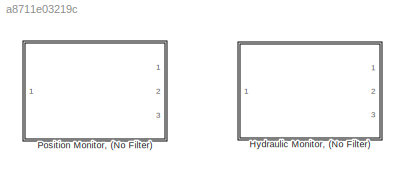
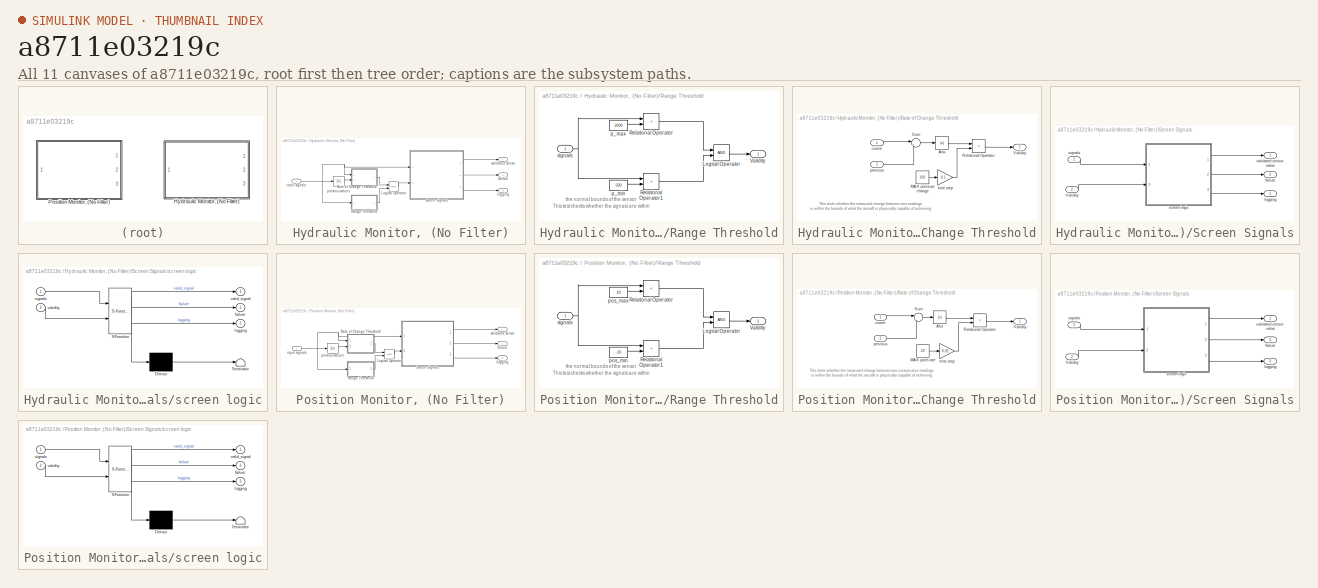
[diagram: thumbnail index - all 11 canvases of the model, root first then tree order]
MODEL slx_a8711e03219c
KIND library
CONFIG AbsTol = auto
CONFIG EnableMultiTasking = off
CONFIG FixedStep = auto
CONFIG MaxStep = auto
CONFIG MinStep = auto
CONFIG RelTol = 1e-3
CONFIG SampleTimeConstraint = Unconstrained
CONFIG Solver = ode45
CONFIG SolverName = ode45
CONFIG StartTime = 0.0
CONFIG StopTime = 10.0
BLOCK [SubSystem] Hydraulic Monitor, (No Filter)
  AncestorBlock = screen_library/Hydraulic Monitor
  Ports = [1, 3]
  RequestExecContextInheritance = off
  Variant = off
BLOCK [Logic] Hydraulic Monitor, (No Filter)/Logical Operator
  AllPortsSameDT = off
  Ports = [2, 1]
BLOCK [SubSystem] Hydraulic Monitor, (No Filter)/Range Threshold
  Ports = [1, 1]
  RequestExecContextInheritance = off
  Variant = off
BLOCK [Logic] Hydraulic Monitor, (No Filter)/Range Threshold/Logical Operator
  AllPortsSameDT = off
  Ports = [2, 1]
BLOCK [RelationalOperator] Hydraulic Monitor, (No Filter)/Range Threshold/Relational Operator
  InputSameDT = off
  Operator = <
  Ports = [2, 1]
BLOCK [RelationalOperator] Hydraulic Monitor, (No Filter)/Range Threshold/Relational Operator1
  InputSameDT = off
  Operator = >
  Ports = [2, 1]
BLOCK [Outport] Hydraulic Monitor, (No Filter)/Range Threshold/Validity
  IconDisplay = Port number
BLOCK [Constant] Hydraulic Monitor, (No Filter)/Range Threshold/p_max
  Value = 2000
BLOCK [Constant] Hydraulic Monitor, (No Filter)/Range Threshold/p_min
  Value = 500
BLOCK [Inport] Hydraulic Monitor, (No Filter)/Range Threshold/signals
  IconDisplay = Port number
BLOCK [SubSystem] Hydraulic Monitor, (No Filter)/Rate of Change Threshold
  Ports = [2, 1]
  RequestExecContextInheritance = off
  Variant = off
BLOCK [Abs] Hydraulic Monitor, (No Filter)/Rate of Change Threshold/Abs
BLOCK [Constant] Hydraulic Monitor, (No Filter)/Rate of Change Threshold/MAX pressure change
  Value = 100
BLOCK [RelationalOperator] Hydraulic Monitor, (No Filter)/Rate of Change Threshold/Relational Operator
  InputSameDT = off
  Operator = <
  OutDataTypeStr = boolean
  Ports = [2, 1]
BLOCK [Sum] Hydraulic Monitor, (No Filter)/Rate of Change Threshold/Sum
  IconShape = round
  InputSameDT = off
  Inputs = |+-
  OutDataTypeStr = Inherit: Inherit via internal rule
  Ports = [2, 1]
BLOCK [Outport] Hydraulic Monitor, (No Filter)/Rate of Change Threshold/Validity
  IconDisplay = Port number
BLOCK [Inport] Hydraulic Monitor, (No Filter)/Rate of Change Threshold/curent
  IconDisplay = Port number
BLOCK [Inport] Hydraulic Monitor, (No Filter)/Rate of Change Threshold/previous
  IconDisplay = Port number
  Port = 2
BLOCK [Gain] Hydraulic Monitor, (No Filter)/Rate of Change Threshold/time step
  Gain = 0.1
BLOCK [SubSystem] Hydraulic Monitor, (No Filter)/Screen Signals
  Ports = [2, 3]
  RequestExecContextInheritance = off
  Variant = off
BLOCK [Inport] Hydraulic Monitor, (No Filter)/Screen Signals/Validity
  IconDisplay = Port number
  Port = 2
BLOCK [Outport] Hydraulic Monitor, (No Filter)/Screen Signals/failure
  IconDisplay = Port number
  Port = 2
BLOCK [Outport] Hydraulic Monitor, (No Filter)/Screen Signals/logging
  IconDisplay = Port number
  Port = 3
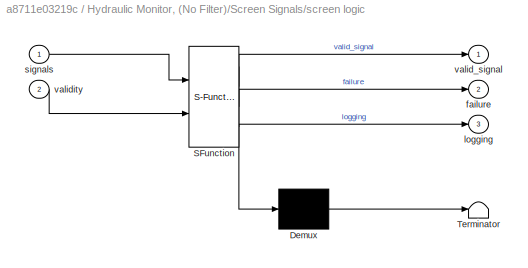
BLOCK [SubSystem] Hydraulic Monitor, (No Filter)/Screen Signals/screen logic
  AncestorBlock = new_screening/Montior/Screen Signals/screen logic
  ErrorFcn = Stateflow.Translate.translate
  PermitHierarchicalResolution = ExplicitOnly
  Ports = [2, 3]
  RequestExecContextInheritance = off
  SFBlockType = Chart
  TreatAsAtomicUnit = on
  Variant = off
BLOCK [Demux] Hydraulic Monitor, (No Filter)/Screen Signals/screen logic/ Demux 
  Outputs = 1
  Ports = [1, 1]
BLOCK [S-Function] Hydraulic Monitor, (No Filter)/Screen Signals/screen logic/ SFunction 
  EnableBusSupport = off
  FunctionName = sf_sfun
  PortCounts = [2 4]
  Ports = [2, 4]
  SFcnIsStateOwnerBlock = off
  SFunctionDeploymentMode = off
  Tag = Stateflow S-Function sf_aircraft_screen_library 2
BLOCK [Terminator] Hydraulic Monitor, (No Filter)/Screen Signals/screen logic/ Terminator 
BLOCK [Outport] Hydraulic Monitor, (No Filter)/Screen Signals/screen logic/ logging
  IconDisplay = Port number
  Port = 3
BLOCK [Outport] Hydraulic Monitor, (No Filter)/Screen Signals/screen logic/failure
  IconDisplay = Port number
  Port = 2
BLOCK [Inport] Hydraulic Monitor, (No Filter)/Screen Signals/screen logic/signals
  IconDisplay = Port number
BLOCK [Outport] Hydraulic Monitor, (No Filter)/Screen Signals/screen logic/valid_signal
  IconDisplay = Port number
BLOCK [Inport] Hydraulic Monitor, (No Filter)/Screen Signals/screen logic/validity
  IconDisplay = Port number
  Port = 2
BLOCK [Inport] Hydraulic Monitor, (No Filter)/Screen Signals/signals
  IconDisplay = Port number
BLOCK [Outport] Hydraulic Monitor, (No Filter)/Screen Signals/validated sensor value
  IconDisplay = Port number
BLOCK [Outport] Hydraulic Monitor, (No Filter)/failure
  IconDisplay = Port number
  Port = 2
BLOCK [Inport] Hydraulic Monitor, (No Filter)/input signals
  IconDisplay = Port number
  PortDimensions = 3
  SampleTime = 0.01
BLOCK [Outport] Hydraulic Monitor, (No Filter)/logging
  IconDisplay = Port number
  Port = 3
BLOCK [UnitDelay] Hydraulic Monitor, (No Filter)/previous values
  SampleTime = -1
BLOCK [Outport] Hydraulic Monitor, (No Filter)/validated sensor
  IconDisplay = Port number
BLOCK [SubSystem] Position Monitor, (No Filter)
  Ports = [1, 3]
  RequestExecContextInheritance = off
  Variant = off
BLOCK [Logic] Position Monitor, (No Filter)/Logical Operator
  AllPortsSameDT = off
  Ports = [2, 1]
BLOCK [SubSystem] Position Monitor, (No Filter)/Range Threshold
  Ports = [1, 1]
  RequestExecContextInheritance = off
  Variant = off
BLOCK [Logic] Position Monitor, (No Filter)/Range Threshold/Logical Operator
  AllPortsSameDT = off
  Ports = [2, 1]
BLOCK [RelationalOperator] Position Monitor, (No Filter)/Range Threshold/Relational Operator
  InputSameDT = off
  Operator = <
  Ports = [2, 1]
BLOCK [RelationalOperator] Position Monitor, (No Filter)/Range Threshold/Relational Operator1
  InputSameDT = off
  Operator = >
  Ports = [2, 1]
BLOCK [Outport] Position Monitor, (No Filter)/Range Threshold/Validity
  IconDisplay = Port number
BLOCK [Constant] Position Monitor, (No Filter)/Range Threshold/pos_max
  Value = 10
BLOCK [Constant] Position Monitor, (No Filter)/Range Threshold/pos_min
  Value = -10
BLOCK [Inport] Position Monitor, (No Filter)/Range Threshold/signals
  IconDisplay = Port number
BLOCK [SubSystem] Position Monitor, (No Filter)/Rate of Change Threshold
  Ports = [2, 1]
  RequestExecContextInheritance = off
  Variant = off
BLOCK [Abs] Position Monitor, (No Filter)/Rate of Change Threshold/Abs
BLOCK [Constant] Position Monitor, (No Filter)/Rate of Change Threshold/MAX pitch rate
  Value = 20
BLOCK [RelationalOperator] Position Monitor, (No Filter)/Rate of Change Threshold/Relational Operator
  InputSameDT = off
  Operator = <
  OutDataTypeStr = boolean
  Ports = [2, 1]
BLOCK [Sum] Position Monitor, (No Filter)/Rate of Change Threshold/Sum
  IconShape = round
  InputSameDT = off
  Inputs = |+-
  OutDataTypeStr = Inherit: Inherit via internal rule
  Ports = [2, 1]
BLOCK [Outport] Position Monitor, (No Filter)/Rate of Change Threshold/Validity
  IconDisplay = Port number
BLOCK [Inport] Position Monitor, (No Filter)/Rate of Change Threshold/curent
  IconDisplay = Port number
BLOCK [Inport] Position Monitor, (No Filter)/Rate of Change Threshold/previous
  IconDisplay = Port number
  Port = 2
BLOCK [Gain] Position Monitor, (No Filter)/Rate of Change Threshold/time step
  Gain = 0.01
BLOCK [SubSystem] Position Monitor, (No Filter)/Screen Signals
  Ports = [2, 3]
  RequestExecContextInheritance = off
  Variant = off
BLOCK [Inport] Position Monitor, (No Filter)/Screen Signals/Validity
  IconDisplay = Port number
  Port = 2
BLOCK [Outport] Position Monitor, (No Filter)/Screen Signals/failure
  IconDisplay = Port number
  Port = 2
BLOCK [Outport] Position Monitor, (No Filter)/Screen Signals/logging
  IconDisplay = Port number
  Port = 3
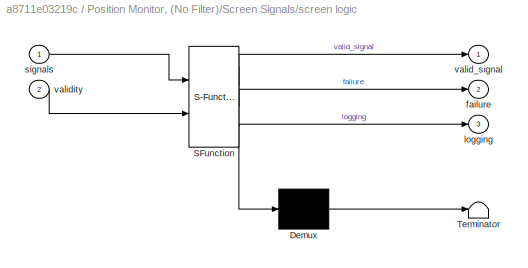
BLOCK [SubSystem] Position Monitor, (No Filter)/Screen Signals/screen logic
  ErrorFcn = Stateflow.Translate.translate
  PermitHierarchicalResolution = ExplicitOnly
  Ports = [2, 3]
  RequestExecContextInheritance = off
  SFBlockType = Chart
  TreatAsAtomicUnit = on
  Variant = off
BLOCK [Demux] Position Monitor, (No Filter)/Screen Signals/screen logic/ Demux 
  Outputs = 1
  Ports = [1, 1]
BLOCK [S-Function] Position Monitor, (No Filter)/Screen Signals/screen logic/ SFunction 
  EnableBusSupport = off
  FunctionName = sf_sfun
  PortCounts = [2 4]
  Ports = [2, 4]
  SFcnIsStateOwnerBlock = off
  SFunctionDeploymentMode = off
  Tag = Stateflow S-Function sf_aircraft_screen_library 1
BLOCK [Terminator] Position Monitor, (No Filter)/Screen Signals/screen logic/ Terminator 
BLOCK [Outport] Position Monitor, (No Filter)/Screen Signals/screen logic/ logging
  IconDisplay = Port number
  Port = 3
BLOCK [Outport] Position Monitor, (No Filter)/Screen Signals/screen logic/failure
  IconDisplay = Port number
  Port = 2
BLOCK [Inport] Position Monitor, (No Filter)/Screen Signals/screen logic/signals
  IconDisplay = Port number
BLOCK [Outport] Position Monitor, (No Filter)/Screen Signals/screen logic/valid_signal
  IconDisplay = Port number
BLOCK [Inport] Position Monitor, (No Filter)/Screen Signals/screen logic/validity
  IconDisplay = Port number
  Port = 2
BLOCK [Inport] Position Monitor, (No Filter)/Screen Signals/signals
  IconDisplay = Port number
BLOCK [Outport] Position Monitor, (No Filter)/Screen Signals/validated sensor value
  IconDisplay = Port number
BLOCK [Outport] Position Monitor, (No Filter)/failure
  IconDisplay = Port number
  Port = 2
BLOCK [Inport] Position Monitor, (No Filter)/input signals
  IconDisplay = Port number
  PortDimensions = 3
  SampleTime = 0.01
BLOCK [Outport] Position Monitor, (No Filter)/logging
  IconDisplay = Port number
  Port = 3
BLOCK [UnitDelay] Position Monitor, (No Filter)/previous values
  SampleTime = -1
BLOCK [Outport] Position Monitor, (No Filter)/validated sensor
  IconDisplay = Port number
ANNOTATION Hydraulic Monitor, (No Filter)/Range Threshold: This test checks whether the signals are within the normal bounds of the sensor
ANNOTATION Hydraulic Monitor, (No Filter)/Rate of Change Threshold: This tests whether the measured change between two readings is within the bounds of what the aircraft is physically capable of achieving
ANNOTATION Position Monitor, (No Filter)/Range Threshold: This test checks whether the signals are within the normal bounds of the sensor
ANNOTATION Position Monitor, (No Filter)/Rate of Change Threshold: This tests whether the measured change between two consecutive readings is within the bounds of what the aircraft is physically capable of achieving
LINE Position Monitor, (No Filter)/Logical Operator:1 -> Position Monitor, (No Filter)/Screen Signals:2
LINE Position Monitor, (No Filter)/Range Threshold/Logical Operator:1 -> Position Monitor, (No Filter)/Range Threshold/Validity:1
LINE Position Monitor, (No Filter)/Range Threshold/Relational Operator1:1 -> Position Monitor, (No Filter)/Range Threshold/Logical Operator:2
LINE Position Monitor, (No Filter)/Range Threshold/Relational Operator:1 -> Position Monitor, (No Filter)/Range Threshold/Logical Operator:1
LINE Position Monitor, (No Filter)/Range Threshold/pos_max:1 -> Position Monitor, (No Filter)/Range Threshold/Relational Operator:2
LINE Position Monitor, (No Filter)/Range Threshold/pos_min:1 -> Position Monitor, (No Filter)/Range Threshold/Relational Operator1:2
NET Position Monitor, (No Filter)/Range Threshold/signals:1 -> Position Monitor, (No Filter)/Range Threshold/Relational Operator1:1, Position Monitor, (No Filter)/Range Threshold/Relational Operator:1
LINE Position Monitor, (No Filter)/Range Threshold:1 -> Position Monitor, (No Filter)/Logical Operator:2
LINE Position Monitor, (No Filter)/Rate of Change Threshold/Abs:1 -> Position Monitor, (No Filter)/Rate of Change Threshold/Relational Operator:1
LINE Position Monitor, (No Filter)/Rate of Change Threshold/MAX pitch rate:1 -> Position Monitor, (No Filter)/Rate of Change Threshold/time step:1
LINE Position Monitor, (No Filter)/Rate of Change Threshold/Relational Operator:1 -> Position Monitor, (No Filter)/Rate of Change Threshold/Validity:1
LINE Position Monitor, (No Filter)/Rate of Change Threshold/Sum:1 -> Position Monitor, (No Filter)/Rate of Change Threshold/Abs:1
LINE Position Monitor, (No Filter)/Rate of Change Threshold/curent:1 -> Position Monitor, (No Filter)/Rate of Change Threshold/Sum:1
LINE Position Monitor, (No Filter)/Rate of Change Threshold/previous:1 -> Position Monitor, (No Filter)/Rate of Change Threshold/Sum:2
LINE Position Monitor, (No Filter)/Rate of Change Threshold/time step:1 -> Position Monitor, (No Filter)/Rate of Change Threshold/Relational Operator:2
LINE Position Monitor, (No Filter)/Rate of Change Threshold:1 -> Position Monitor, (No Filter)/Logical Operator:1
LINE Position Monitor, (No Filter)/Screen Signals/Validity:1 -> Position Monitor, (No Filter)/Screen Signals/screen logic:2
LINE Position Monitor, (No Filter)/Screen Signals/screen logic:1 -> Position Monitor, (No Filter)/Screen Signals/validated sensor value:1
LINE Position Monitor, (No Filter)/Screen Signals/screen logic:2 -> Position Monitor, (No Filter)/Screen Signals/failure:1
LINE Position Monitor, (No Filter)/Screen Signals/screen logic:3 -> Position Monitor, (No Filter)/Screen Signals/logging:1
LINE Position Monitor, (No Filter)/Screen Signals/signals:1 -> Position Monitor, (No Filter)/Screen Signals/screen logic:1
LINE Position Monitor, (No Filter)/Screen Signals:1 -> Position Monitor, (No Filter)/validated sensor:1
LINE Position Monitor, (No Filter)/Screen Signals:2 -> Position Monitor, (No Filter)/failure:1
LINE Position Monitor, (No Filter)/Screen Signals:3 -> Position Monitor, (No Filter)/logging:1
NET Position Monitor, (No Filter)/input signals:1 -> Position Monitor, (No Filter)/Range Threshold:1, Position Monitor, (No Filter)/Rate of Change Threshold:1, Position Monitor, (No Filter)/Screen Signals:1, Position Monitor, (No Filter)/previous values:1
LINE Position Monitor, (No Filter)/previous values:1 -> Position Monitor, (No Filter)/Rate of Change Threshold:2
note: NET lines group one-source signal fan-out (src -> all destinations, sorted); 1:1 wires keep LINE
CHART Position Monitor,
(No Filter)/Screen Signals/screen logic states=12 transitions=71
  STATE_LABEL 'Screen'
  STATE_LABEL 'no valid signals'
  STATE_LABEL 'three'
  STATE_LABEL '{sum=signals[1]+signals[2]+signals[3];}'
  STATE_LABEL '{middle=sum-...\nmax(max(signals[1],signals[2]),signals[3])-...\nmin(min(signals[1],signals[2]),signals[3]);}'
  STATE_LABEL '[bad==1]'
  STATE_LABEL '{none();}'
  STATE_LABEL '{valid_signal=middle;}'
  STATE_LABEL '{failure=0;}'
  STATE_LABEL '{prev_signal=valid_signal;}'
  STATE_LABEL '{count=0;}'
  STATE_LABEL 'zero'
  STATE_LABEL '{none();}'
  STATE_LABEL 'one'
  STATE_LABEL 'Only one valid sensor - just use the valid signal.\nFailure is false'
  STATE_LABEL '{valid_signal=signals[select[1]];}'
  STATE_LABEL '{failure=0;}'
  STATE_LABEL '{prev_signal=valid_signal;}'
  STATE_LABEL '{count=0;}'
  STATE_LABEL 'two'
  STATE_LABEL '{diff=abs(signals[select[1]]-signals[select[2]]);}'
  STATE_LABEL '[diff>diff_max]'
  STATE_LABEL '{mean=(signals[select[1]]+signals[select[2]])/2;}'
  STATE_LABEL '{none();}'
  STATE_LABEL '{valid_signal=mean;}'
  STATE_LABEL '{failure=0;}'
  STATE_LABEL '{prev_signal=valid_signal;}'
  STATE_LABEL '{count=0;}'
  STATE_LABEL '{n=valid_sensors();}'
  STATE_LABEL '[n==3]'
  STATE_LABEL '[n==2]'
  STATE_LABEL '[n==1]'
  STATE_LABEL 'no valid signals'
  STATE_LABEL 'three'
  STATE_LABEL '{sum=signals[1]+signals[2]+signals[3];}'
  STATE_LABEL '{middle=sum-...\nmax(max(signals[1],signals[2]),signals[3])-...\nmin(min(signals[1],signals[2]),signals[3]);}'
  STATE_LABEL '[bad==1]'
  STATE_LABEL '{none();}'
  STATE_LABEL '{valid_signal=middle;}'
  STATE_LABEL '{failure=0;}'
CHART Hydraulic Monitor,
(No Filter)/Screen Signals/screen logic states=12 transitions=71
  STATE_LABEL 'Screen'
  STATE_LABEL 'no valid signals'
  STATE_LABEL 'three'
  STATE_LABEL '{sum=signals[1]+signals[2]+signals[3];}'
  STATE_LABEL '{middle=sum-...\nmax(max(signals[1],signals[2]),signals[3])-...\nmin(min(signals[1],signals[2]),signals[3]);}'
  STATE_LABEL '[bad==1]'
  STATE_LABEL '{none();}'
  STATE_LABEL '{valid_signal=middle;}'
  STATE_LABEL '{failure=0;}'
  STATE_LABEL '{prev_signal=valid_signal;}'
  STATE_LABEL '{count=0;}'
  STATE_LABEL 'zero'
  STATE_LABEL '{none();}'
  STATE_LABEL 'one'
  STATE_LABEL 'Only one valid sensor - just use the valid signal.\nFailure is false'
  STATE_LABEL '{valid_signal=signals[select[1]];}'
  STATE_LABEL '{failure=0;}'
  STATE_LABEL '{prev_signal=valid_signal;}'
  STATE_LABEL '{count=0;}'
  STATE_LABEL 'two'
  STATE_LABEL '{diff=abs(signals[select[1]]-signals[select[2]]);}'
  STATE_LABEL '[diff>diff_max]'
  STATE_LABEL '{mean=(signals[select[1]]+signals[select[2]])/2;}'
  STATE_LABEL '{none();}'
  STATE_LABEL '{valid_signal=mean;}'
  STATE_LABEL '{failure=0;}'
  STATE_LABEL '{prev_signal=valid_signal;}'
  STATE_LABEL '{count=0;}'
  STATE_LABEL '{n=valid_sensors();}'
  STATE_LABEL '[n==3]'
  STATE_LABEL '[n==2]'
  STATE_LABEL '[n==1]'
  STATE_LABEL 'no valid signals'
  STATE_LABEL 'three'
  STATE_LABEL '{sum=signals[1]+signals[2]+signals[3];}'
  STATE_LABEL '{middle=sum-...\nmax(max(signals[1],signals[2]),signals[3])-...\nmin(min(signals[1],signals[2]),signals[3]);}'
  STATE_LABEL '[bad==1]'
  STATE_LABEL '{none();}'
  STATE_LABEL '{valid_signal=middle;}'
  STATE_LABEL '{failure=0;}'
